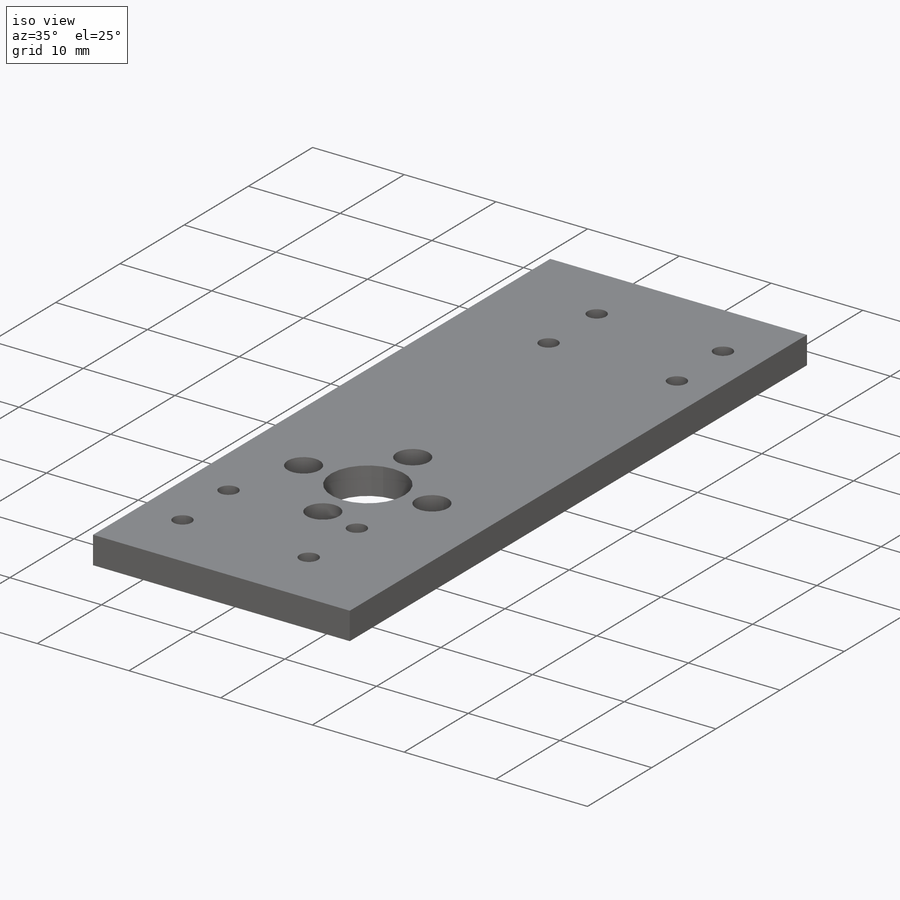
[diagram: iso view]
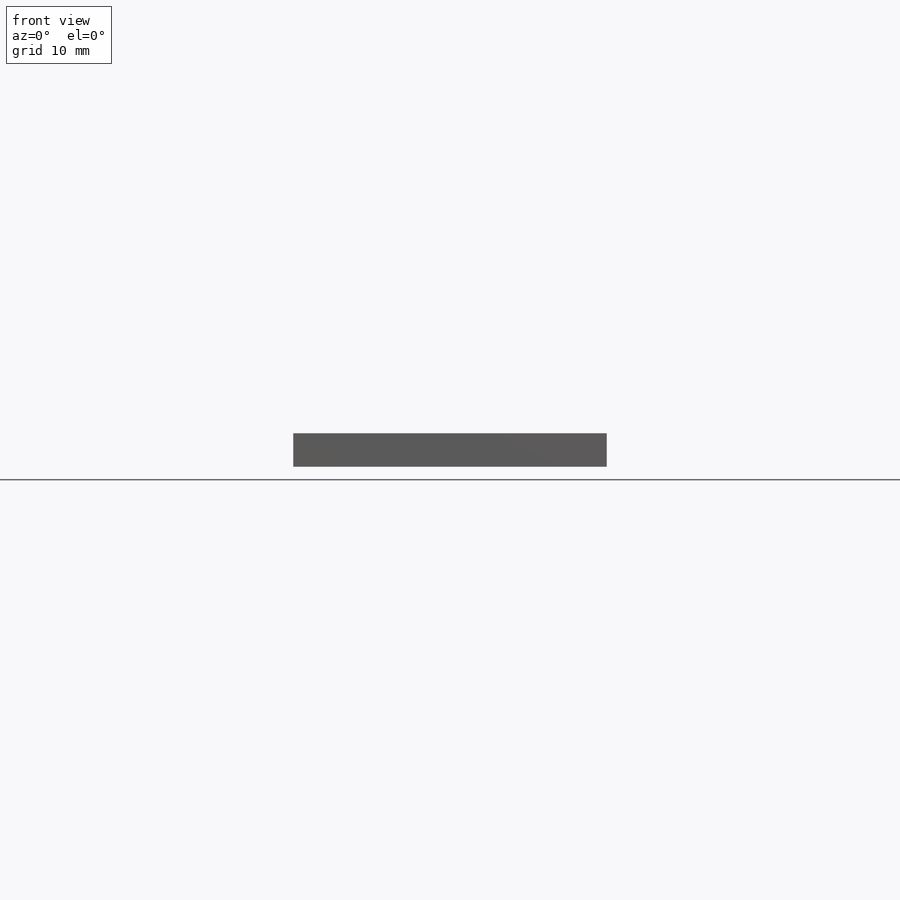
[diagram: front view]
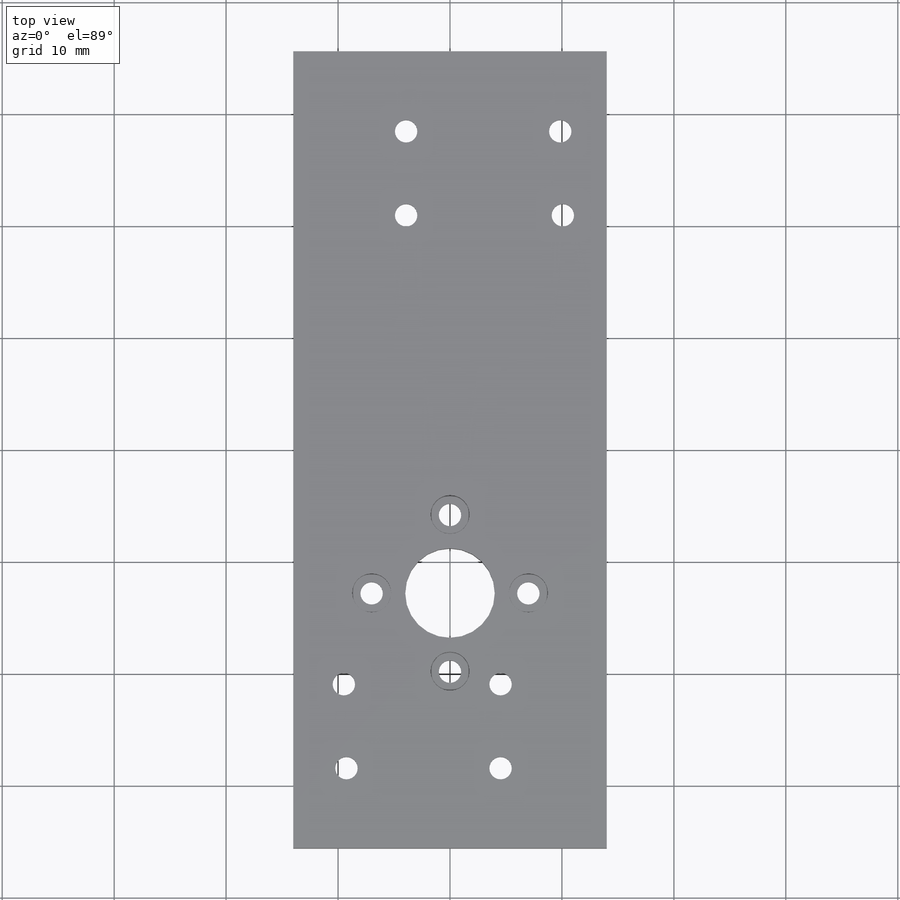
[diagram: top view]
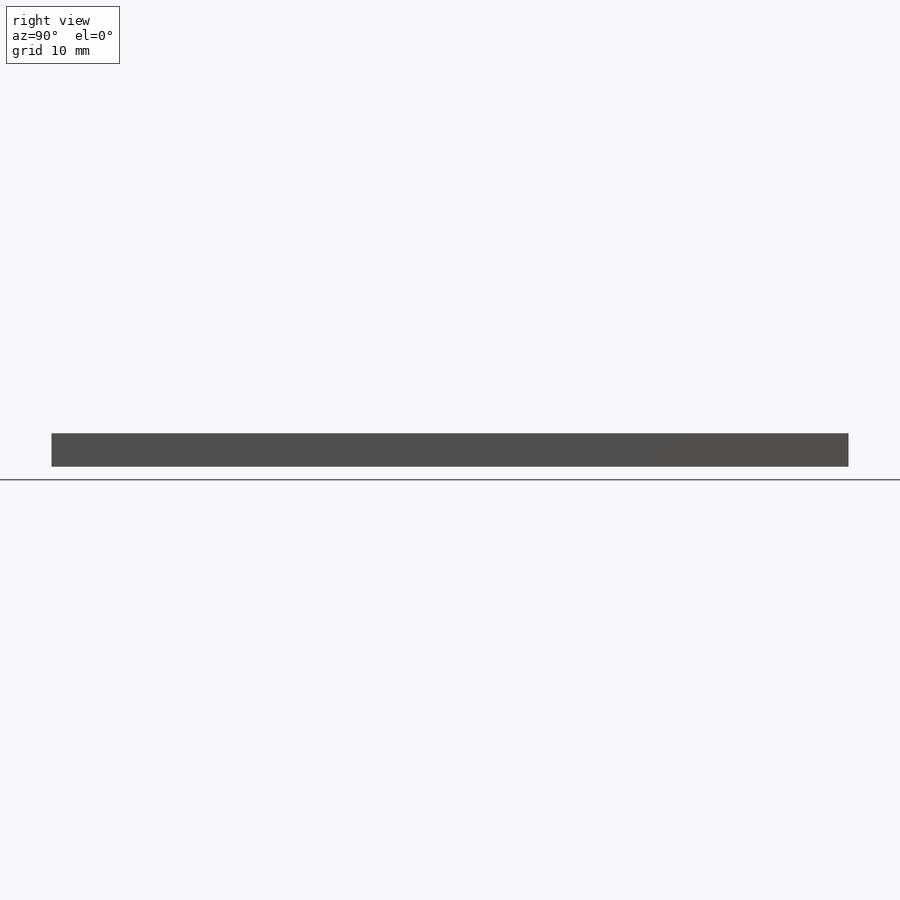
[diagram: right view]
SOLIDWORKS PART (.sldprt)
format: sldprt  version: not decoded by parser v0  size: 262,144 bytes
history: native  units: mm
features: sketch x6, cut_extrude x3, extrude x2, material x1 (+12 scaffold rows collapsed)
feature tree (24):
  scaffold x12  (default folders/planes/origin — collapsed)
  material  "Custom Plastic"
  sketch  "Sketch1"  dims[D1=71.2mm D2=28.0mm]
  extrude  "Boss-Extrude1"  Depth=3mm
  sketch  "Sketch4"  dims[c1.D1=8.0mm c1.D2=14.0mm c2.D1=2.0mm c2.D4=14.0mm c2.D3=4.0]
  cut_extrude  "Cut-Extrude2"  Depth=10mm
  sketch  "Sketch5"  dims[D1=8.0mm D2=22.8mm D3=14.0mm]
  cut_extrude  "Cut-Extrude3"  Depth=10mm
  sketch  "Sketch9"  dims[D1=0.0mm D2=0.0mm D3=0.0mm D4=0.0mm D5=0.0mm D6=0.0mm D7=0.0mm D8=0.0mm]
  sketch  "Sketch10"  dims[D1=3.5mm D2=3.5mm D3=3.5mm D4=3.5mm]
  cut_extrude  "Cut-Extrude9"  Depth=1.6mm
  sketch  "Sketch12"
  extrude  "Boss-Extrude2"  [1 undecoded]
decode coverage: 9 of 11 modeling features carry decoded parameters
note: 1 parameter value undecoded
note: suppression state not decoded; provenance and decode notes live in map.json
